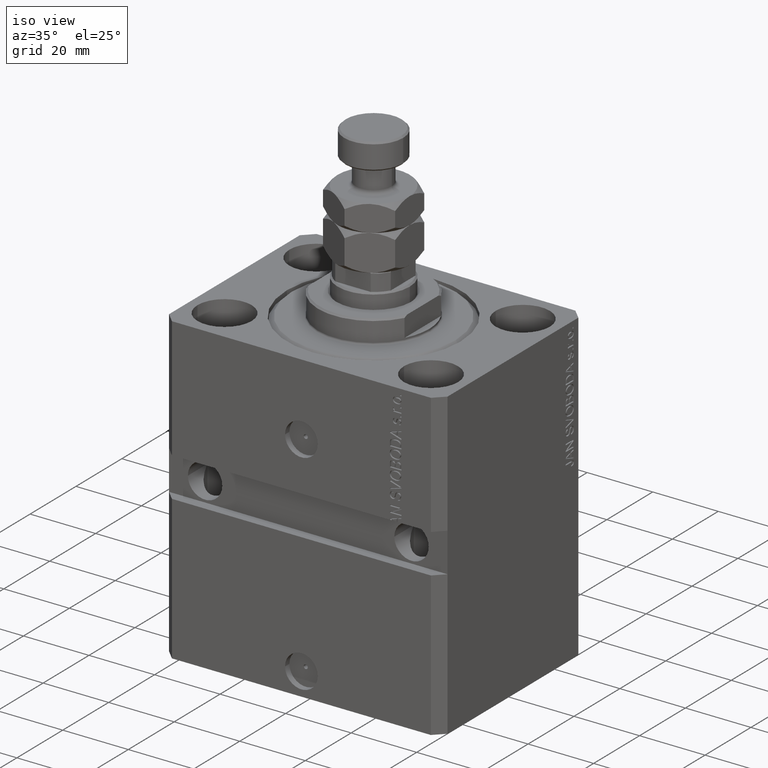
[diagram: clean part render]
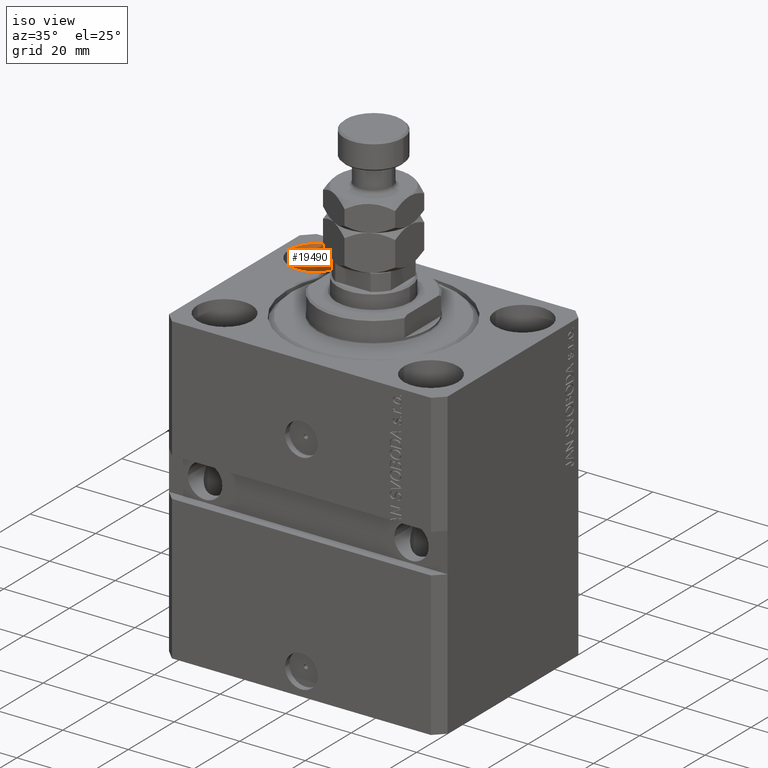
[diagram: same view with one face highlighted and labeled with its STEP entity id]
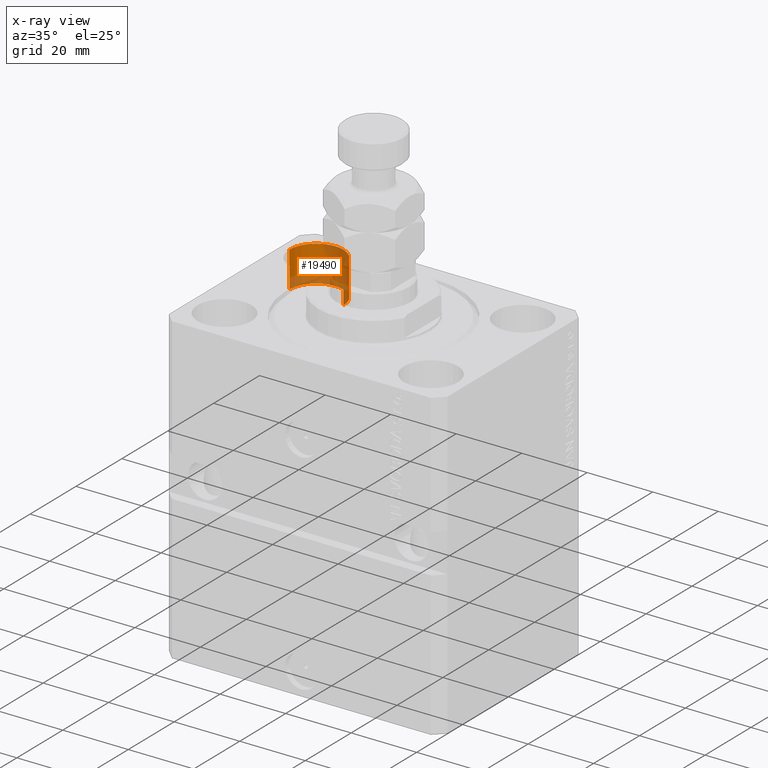
[diagram: x-ray of the same camera — body ghosted, the highlighted face saturated]
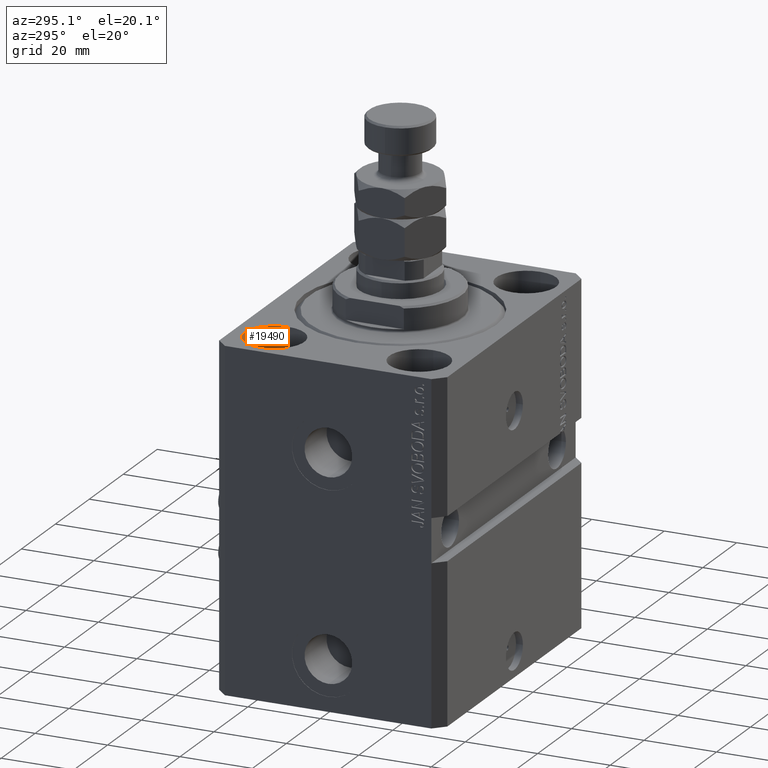
[diagram: same view with one face highlighted and labeled with its STEP entity id]
A machine part, iso view. The second image highlights one B-rep face of the part: STEP entity #19490.
The next image is the same camera in x-ray: the body ghosted, the highlighted face saturated — about 54% of this face is hidden behind the body in this view.
A second angle (auxiliary view) of the same face is appended — the face is thin or edge-on in the first view.
In plain terms, the highlighted cylindrical surface (edge-blend (fillet) strip) has radius 8.25 mm, axis along (0, 0, 1).
Its self-contained STEP definition (entity closure, byte-faithful):
#2050 = ORIENTED_EDGE ( 'NONE', *, *, #31623, .T. ) ;
#2786 = DIRECTION ( 'NONE',  ( 0.000000000000000000, 0.000000000000000000, 1.000000000000000000 ) ) ;
#2980 = CARTESIAN_POINT ( 'NONE',  ( -39.75000000000000000, 20.00000000000000000, -11.00000000000000000 ) ) ;
#3061 = DIRECTION ( 'NONE',  ( -0.000000000000000000, -0.000000000000000000, 1.000000000000000000 ) ) ;
#4489 = DIRECTION ( 'NONE',  ( 1.000000000000000000, 0.000000000000000000, 0.000000000000000000 ) ) ;
#5521 = DIRECTION ( 'NONE',  ( 1.000000000000000000, 0.000000000000000000, 0.000000000000000000 ) ) ;
#6758 = ORIENTED_EDGE ( 'NONE', *, *, #21540, .F. ) ;
#6793 = LINE ( 'NONE', #21958, #36350 ) ;
#9264 = VERTEX_POINT ( 'NONE', #25607 ) ;
#12646 = ORIENTED_EDGE ( 'NONE', *, *, #27697, .T. ) ;
#16151 = AXIS2_PLACEMENT_3D ( 'NONE', #20614, #35809, #4489 ) ;
#16874 = DIRECTION ( 'NONE',  ( 1.000000000000000000, 0.000000000000000000, 0.000000000000000000 ) ) ;
#17896 = VERTEX_POINT ( 'NONE', #18161 ) ;
#18161 = CARTESIAN_POINT ( 'NONE',  ( -23.25000000000000000, 20.00000000000000000, 0.000000000000000000 ) ) ;
#19490 = ADVANCED_FACE ( 'NONE', ( #23635 ), #24358, .F. ) ;
#20614 = CARTESIAN_POINT ( 'NONE',  ( -31.50000000000000000, 20.00000000000000000, -11.00000000000000000 ) ) ;
#21207 = CIRCLE ( 'NONE', #22809, 8.250000000000000000 ) ;
#21540 = EDGE_CURVE ( 'NONE', #27773, #39894, #36330, .T. ) ;
#21958 = CARTESIAN_POINT ( 'NONE',  ( -23.25000000000000000, 20.00000000000000000, -11.00000000000000000 ) ) ;
#22809 = AXIS2_PLACEMENT_3D ( 'NONE', #31823, #39783, #16874 ) ;
#23398 = EDGE_LOOP ( 'NONE', ( #6758, #41123, #2050, #12646 ) ) ;
#23635 = FACE_OUTER_BOUND ( 'NONE', #23398, .T. ) ;
#24358 = CYLINDRICAL_SURFACE ( 'NONE', #16151, 8.250000000000000000 ) ;
#25607 = CARTESIAN_POINT ( 'NONE',  ( -23.25000000000000000, 20.00000000000000000, -11.00000000000000000 ) ) ;
#27697 = EDGE_CURVE ( 'NONE', #17896, #39894, #21207, .T. ) ;
#27773 = VERTEX_POINT ( 'NONE', #28110 ) ;
#28110 = CARTESIAN_POINT ( 'NONE',  ( -39.75000000000000000, 20.00000000000000000, -11.00000000000000000 ) ) ;
#31330 = VECTOR ( 'NONE', #40069, 1000.000000000000000 ) ;
#31623 = EDGE_CURVE ( 'NONE', #9264, #17896, #6793, .T. ) ;
#31759 = CIRCLE ( 'NONE', #35739, 8.250000000000000000 ) ;
#31802 = CARTESIAN_POINT ( 'NONE',  ( -39.75000000000000000, 20.00000000000000000, 0.000000000000000000 ) ) ;
#31823 = CARTESIAN_POINT ( 'NONE',  ( -31.50000000000000000, 20.00000000000000000, 0.000000000000000000 ) ) ;
#35739 = AXIS2_PLACEMENT_3D ( 'NONE', #43621, #2786, #5521 ) ;
#35809 = DIRECTION ( 'NONE',  ( -0.000000000000000000, -0.000000000000000000, 1.000000000000000000 ) ) ;
#36330 = LINE ( 'NONE', #2980, #31330 ) ;
#36350 = VECTOR ( 'NONE', #3061, 1000.000000000000000 ) ;
#36657 = EDGE_CURVE ( 'NONE', #9264, #27773, #31759, .T. ) ;
#39783 = DIRECTION ( 'NONE',  ( 0.000000000000000000, 0.000000000000000000, 1.000000000000000000 ) ) ;
#39894 = VERTEX_POINT ( 'NONE', #31802 ) ;
#40069 = DIRECTION ( 'NONE',  ( -0.000000000000000000, -0.000000000000000000, 1.000000000000000000 ) ) ;
#41123 = ORIENTED_EDGE ( 'NONE', *, *, #36657, .F. ) ;
#43621 = CARTESIAN_POINT ( 'NONE',  ( -31.50000000000000000, 20.00000000000000000, -11.00000000000000000 ) ) ;